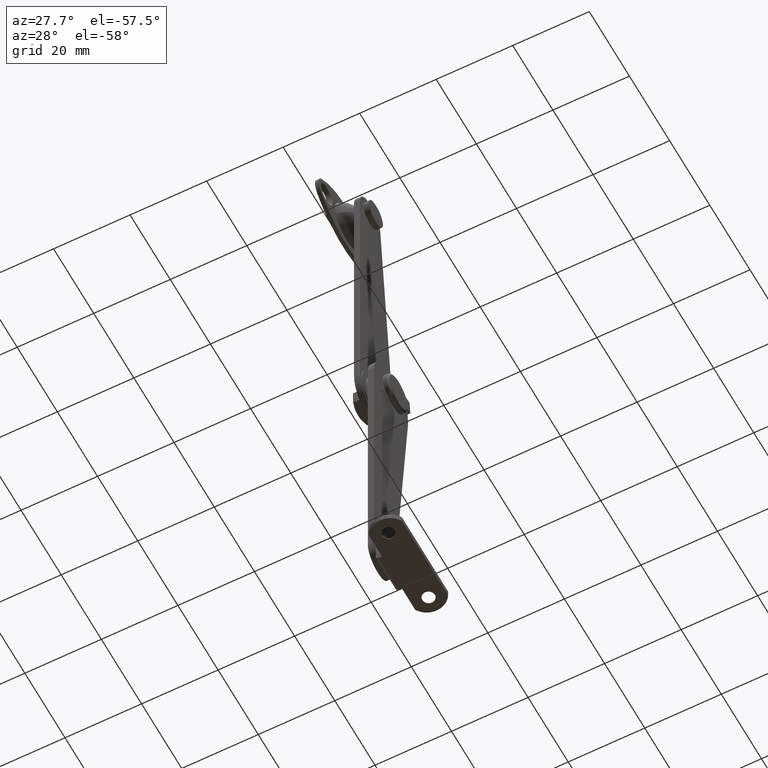
[diagram: clean part render]
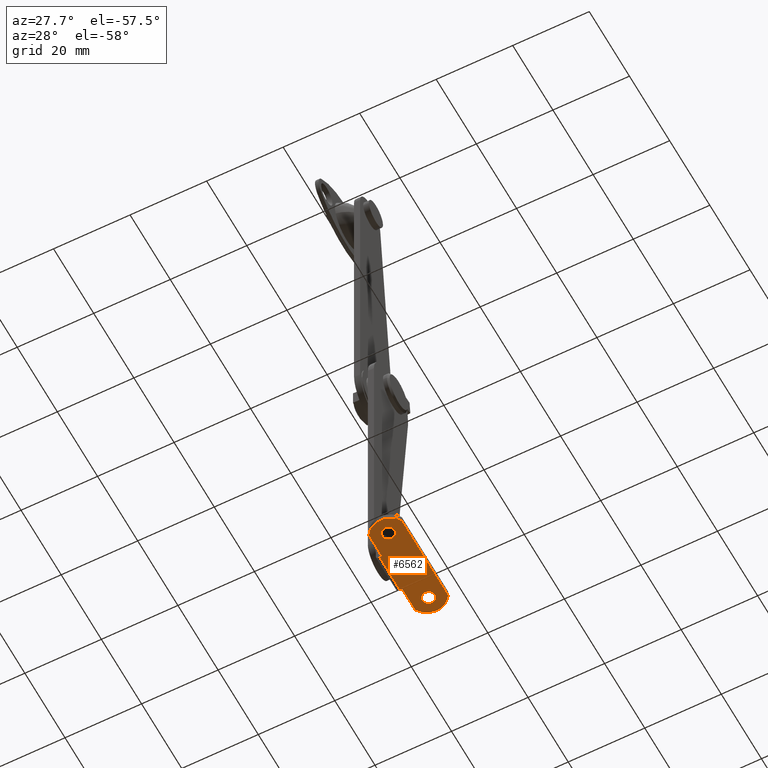
[diagram: same view with one face highlighted and labeled with its STEP entity id]
A machine part, auxiliary view. The second image highlights one B-rep face of the part: STEP entity #6562.
In plain terms, the highlighted face is a freeform B-spline surface patch.
Its self-contained STEP definition (entity closure, byte-faithful):
#5294=CARTESIAN_POINT('',(11.788265327031199,8.139221142729163,-82.599990999999889));
#5295=VERTEX_POINT('',#5294);
#5301=CARTESIAN_POINT('',(13.249999000000081,6.499997000000001,-82.599990999999903));
#5302=VERTEX_POINT('',#5301);
#5303=CARTESIAN_POINT('',(11.788265327031201,8.139221142729163,-82.599990999999889));
#5304=CARTESIAN_POINT('',(13.249999000000079,7.971339543454336,-82.599990999999903));
#5305=CARTESIAN_POINT('',(13.249999000000081,6.499997000000001,-82.599990999999903));
#5313=(BOUNDED_CURVE()B_SPLINE_CURVE(2,(#5303,#5304,#5305),.UNSPECIFIED.,.F.,.U.)B_SPLINE_CURVE_WITH_KNOTS((3,3),(0.269767803410990,0.500000000000000),.UNSPECIFIED.)CURVE()GEOMETRIC_REPRESENTATION_ITEM()RATIONAL_B_SPLINE_CURVE((0.957343642694562,0.730266203466213,1.0))REPRESENTATION_ITEM(''));
#5314=EDGE_CURVE('',#5295,#5302,#5313,.T.);
#5316=CARTESIAN_POINT('',(11.700729090322371,4.853074582609411,-82.599990999999903));
#5317=VERTEX_POINT('',#5316);
#5318=CARTESIAN_POINT('',(13.249999000000081,6.499997000000001,-82.599990999999903));
#5319=CARTESIAN_POINT('',(13.249999000000081,4.947831989775134,-82.599990999999903));
#5320=CARTESIAN_POINT('',(11.700729090322373,4.853074582609411,-82.599990999999903));
#5328=(BOUNDED_CURVE()B_SPLINE_CURVE(2,(#5318,#5319,#5320),.UNSPECIFIED.,.F.,.U.)B_SPLINE_CURVE_WITH_KNOTS((3,3),(0.500000000000000,0.739332962223158),.UNSPECIFIED.)CURVE()GEOMETRIC_REPRESENTATION_ITEM()RATIONAL_B_SPLINE_CURVE((1.0,0.719603993305204,0.976072041632887))REPRESENTATION_ITEM(''));
#5329=EDGE_CURVE('',#5302,#5317,#5328,.T.);
#5428=CARTESIAN_POINT('',(9.949999000000080,6.499997000000001,-82.599990999999903));
#5429=VERTEX_POINT('',#5428);
#5430=CARTESIAN_POINT('',(11.700729090322369,4.853074582609410,-82.599990999999903));
#5431=CARTESIAN_POINT('',(11.650411059532779,4.849997000000000,-82.599990999999903));
#5432=CARTESIAN_POINT('',(11.599999000000080,4.849997000000000,-82.599990999999903));
#5433=CARTESIAN_POINT('',(9.949999000000080,4.849997000000000,-82.599990999999903));
#5434=CARTESIAN_POINT('',(9.949999000000080,6.499997000000001,-82.599990999999903));
#5442=(BOUNDED_CURVE()B_SPLINE_CURVE(2,(#5430,#5431,#5432,#5433,#5434),.UNSPECIFIED.,.F.,.U.)B_SPLINE_CURVE_WITH_KNOTS((3,2,3),(0.739332962223157,0.750000000000000,1.0),.UNSPECIFIED.)CURVE()GEOMETRIC_REPRESENTATION_ITEM()RATIONAL_B_SPLINE_CURVE((0.976072041632885,0.987502787881343,1.0,0.707106781186548,1.0))REPRESENTATION_ITEM(''));
#5443=EDGE_CURVE('',#5317,#5429,#5442,.T.);
#5445=CARTESIAN_POINT('',(9.949999000000080,6.499997000000001,-82.599990999999903));
#5446=CARTESIAN_POINT('',(9.949999000000080,8.149997000000001,-82.599990999999903));
#5447=CARTESIAN_POINT('',(11.599999000000080,8.149997000000001,-82.599990999999903));
#5448=CARTESIAN_POINT('',(11.694440670273831,8.149997000000001,-82.599990999999903));
#5449=CARTESIAN_POINT('',(11.788265327031201,8.139221142729163,-82.599990999999889));
#5457=(BOUNDED_CURVE()B_SPLINE_CURVE(2,(#5445,#5446,#5447,#5448,#5449),.UNSPECIFIED.,.F.,.U.)B_SPLINE_CURVE_WITH_KNOTS((3,2,3),(0.0,0.250000000000000,0.269767803410990),.UNSPECIFIED.)CURVE()GEOMETRIC_REPRESENTATION_ITEM()RATIONAL_B_SPLINE_CURVE((1.0,0.707106781186548,1.0,0.976840577720335,0.957343642694562))REPRESENTATION_ITEM(''));
#5458=EDGE_CURVE('',#5429,#5295,#5457,.T.);
#5626=CARTESIAN_POINT('',(11.788265327031199,-11.860778857270841,-82.599990999999889));
#5627=VERTEX_POINT('',#5626);
#5633=CARTESIAN_POINT('',(13.249999000000081,-13.500003000000000,-82.599990999999903));
#5634=VERTEX_POINT('',#5633);
#5635=CARTESIAN_POINT('',(11.788265327031201,-11.860778857270844,-82.599990999999889));
#5636=CARTESIAN_POINT('',(13.249999000000079,-12.028660456545662,-82.599990999999903));
#5637=CARTESIAN_POINT('',(13.249999000000081,-13.500003000000000,-82.599990999999903));
#5645=(BOUNDED_CURVE()B_SPLINE_CURVE(2,(#5635,#5636,#5637),.UNSPECIFIED.,.F.,.U.)B_SPLINE_CURVE_WITH_KNOTS((3,3),(0.269767803410990,0.500000000000000),.UNSPECIFIED.)CURVE()GEOMETRIC_REPRESENTATION_ITEM()RATIONAL_B_SPLINE_CURVE((0.957343642694562,0.730266203466213,1.0))REPRESENTATION_ITEM(''));
#5646=EDGE_CURVE('',#5627,#5634,#5645,.T.);
#5648=CARTESIAN_POINT('',(11.700729090322371,-15.146925417390589,-82.599990999999903));
#5649=VERTEX_POINT('',#5648);
#5650=CARTESIAN_POINT('',(13.249999000000081,-13.500003000000000,-82.599990999999903));
#5651=CARTESIAN_POINT('',(13.249999000000081,-15.052168010224872,-82.599990999999903));
#5652=CARTESIAN_POINT('',(11.700729090322373,-15.146925417390587,-82.599990999999903));
#5660=(BOUNDED_CURVE()B_SPLINE_CURVE(2,(#5650,#5651,#5652),.UNSPECIFIED.,.F.,.U.)B_SPLINE_CURVE_WITH_KNOTS((3,3),(0.500000000000000,0.739332962223158),.UNSPECIFIED.)CURVE()GEOMETRIC_REPRESENTATION_ITEM()RATIONAL_B_SPLINE_CURVE((1.0,0.719603993305204,0.976072041632887))REPRESENTATION_ITEM(''));
#5661=EDGE_CURVE('',#5634,#5649,#5660,.T.);
#5756=CARTESIAN_POINT('',(9.949999000000080,-13.500003000000000,-82.599990999999903));
#5757=VERTEX_POINT('',#5756);
#5758=CARTESIAN_POINT('',(11.700729090322369,-15.146925417390591,-82.599990999999903));
#5759=CARTESIAN_POINT('',(11.650411059532779,-15.150003000000002,-82.599990999999903));
#5760=CARTESIAN_POINT('',(11.599999000000080,-15.150003000000000,-82.599990999999903));
#5761=CARTESIAN_POINT('',(9.949999000000080,-15.150003000000000,-82.599990999999903));
#5762=CARTESIAN_POINT('',(9.949999000000080,-13.500003000000000,-82.599990999999903));
#5770=(BOUNDED_CURVE()B_SPLINE_CURVE(2,(#5758,#5759,#5760,#5761,#5762),.UNSPECIFIED.,.F.,.U.)B_SPLINE_CURVE_WITH_KNOTS((3,2,3),(0.739332962223157,0.750000000000000,1.0),.UNSPECIFIED.)CURVE()GEOMETRIC_REPRESENTATION_ITEM()RATIONAL_B_SPLINE_CURVE((0.976072041632885,0.987502787881343,1.0,0.707106781186548,1.0))REPRESENTATION_ITEM(''));
#5771=EDGE_CURVE('',#5649,#5757,#5770,.T.);
#5773=CARTESIAN_POINT('',(9.949999000000080,-13.500003000000000,-82.599990999999903));
#5774=CARTESIAN_POINT('',(9.949999000000080,-11.850002999999999,-82.599990999999903));
#5775=CARTESIAN_POINT('',(11.599999000000080,-11.850002999999999,-82.599990999999903));
#5776=CARTESIAN_POINT('',(11.694440670273831,-11.850002999999999,-82.599990999999903));
#5777=CARTESIAN_POINT('',(11.788265327031201,-11.860778857270844,-82.599990999999889));
#5785=(BOUNDED_CURVE()B_SPLINE_CURVE(2,(#5773,#5774,#5775,#5776,#5777),.UNSPECIFIED.,.F.,.U.)B_SPLINE_CURVE_WITH_KNOTS((3,2,3),(0.0,0.250000000000000,0.269767803410990),.UNSPECIFIED.)CURVE()GEOMETRIC_REPRESENTATION_ITEM()RATIONAL_B_SPLINE_CURVE((1.0,0.707106781186548,1.0,0.976840577720335,0.957343642694562))REPRESENTATION_ITEM(''));
#5786=EDGE_CURVE('',#5757,#5627,#5785,.T.);
#6121=CARTESIAN_POINT('',(6.699997000000120,-8.500003000000110,-82.599990999999903));
#6122=VERTEX_POINT('',#6121);
#6145=CARTESIAN_POINT('',(6.699997000000120,1.499996999999894,-82.599990999999903));
#6146=VERTEX_POINT('',#6145);
#6160=CARTESIAN_POINT('',(6.699997000000120,-8.500003000000110,-82.599990999999903));
#6161=CARTESIAN_POINT('',(6.699997000000120,1.499996999999894,-82.599990999999903));
#6162=QUASI_UNIFORM_CURVE('',1,(#6160,#6161),.UNSPECIFIED.,.F.,.U.);
#6163=EDGE_CURVE('',#6122,#6146,#6162,.T.);
#6217=CARTESIAN_POINT('',(7.299995999999999,1.499996999999894,-82.599990999999903));
#6218=VERTEX_POINT('',#6217);
#6219=CARTESIAN_POINT('',(7.299995999999999,1.499996999999894,-82.599990999999903));
#6220=CARTESIAN_POINT('',(6.699997000000120,1.499996999999894,-82.599990999999903));
#6221=QUASI_UNIFORM_CURVE('',1,(#6219,#6220),.UNSPECIFIED.,.F.,.U.);
#6222=EDGE_CURVE('',#6218,#6146,#6221,.T.);
#6255=CARTESIAN_POINT('',(7.299995999999999,-8.500003000000110,-82.599990999999903));
#6256=VERTEX_POINT('',#6255);
#6257=CARTESIAN_POINT('',(7.299995999999999,-8.500003000000110,-82.599990999999903));
#6258=CARTESIAN_POINT('',(6.699997000000120,-8.500003000000110,-82.599990999999903));
#6259=QUASI_UNIFORM_CURVE('',1,(#6257,#6258),.UNSPECIFIED.,.F.,.U.);
#6260=EDGE_CURVE('',#6256,#6122,#6259,.T.);
#6359=CARTESIAN_POINT('',(7.300003000000091,8.051443108519219,-82.599990999999903));
#6360=VERTEX_POINT('',#6359);
#6361=CARTESIAN_POINT('',(15.899994000000000,8.051469000000001,-82.599990999999903));
#6362=VERTEX_POINT('',#6361);
#6363=CARTESIAN_POINT('',(7.300003000000096,8.051443108519214,-82.599990999999903));
#6364=CARTESIAN_POINT('',(8.752869336809912,10.499969481081276,-82.599990999999918));
#6365=CARTESIAN_POINT('',(11.599991039458841,10.499977999977620,-82.599990999999903));
#6366=CARTESIAN_POINT('',(14.447112742107766,10.499986518873961,-82.599990999999918));
#6367=CARTESIAN_POINT('',(15.899994000000000,8.051469000000001,-82.599990999999903));
#6375=(BOUNDED_CURVE()B_SPLINE_CURVE(2,(#6363,#6364,#6365,#6366,#6367),.UNSPECIFIED.,.F.,.U.)B_SPLINE_CURVE_WITH_KNOTS((3,2,3),(0.0,0.500000000000000,1.0),.UNSPECIFIED.)CURVE()GEOMETRIC_REPRESENTATION_ITEM()RATIONAL_B_SPLINE_CURVE((1.0,0.868992403567618,1.0,0.868992403567618,1.0))REPRESENTATION_ITEM(''));
#6376=EDGE_CURVE('',#6360,#6362,#6375,.T.);
#6415=CARTESIAN_POINT('',(15.899994000000000,-15.051504387960900,-82.599990999999903));
#6416=VERTEX_POINT('',#6415);
#6417=CARTESIAN_POINT('',(15.899994000000000,-15.051504387960900,-82.599990999999903));
#6418=CARTESIAN_POINT('',(15.899994000000000,8.051469000000001,-82.599990999999903));
#6419=QUASI_UNIFORM_CURVE('',1,(#6417,#6418),.UNSPECIFIED.,.F.,.U.);
#6420=EDGE_CURVE('',#6416,#6362,#6419,.T.);
#6452=CARTESIAN_POINT('',(7.300003000000091,-15.051479108519199,-82.599990999999903));
#6453=VERTEX_POINT('',#6452);
#6454=CARTESIAN_POINT('',(15.899994000000000,-15.051504387960900,-82.599990999999903));
#6455=CARTESIAN_POINT('',(14.447113179538944,-17.500022369016399,-82.599990999999903));
#6456=CARTESIAN_POINT('',(11.599991302634891,-17.500013999978400,-82.599990999999903));
#6457=CARTESIAN_POINT('',(8.752869425730843,-17.500005630940397,-82.599990999999903));
#6458=CARTESIAN_POINT('',(7.300003000000088,-15.051479108519199,-82.599990999999903));
#6466=(BOUNDED_CURVE()B_SPLINE_CURVE(2,(#6454,#6455,#6456,#6457,#6458),.UNSPECIFIED.,.F.,.U.)B_SPLINE_CURVE_WITH_KNOTS((3,2,3),(0.0,0.500000000000000,1.0),.UNSPECIFIED.)CURVE()GEOMETRIC_REPRESENTATION_ITEM()RATIONAL_B_SPLINE_CURVE((1.0,0.868992390544996,1.0,0.868992390544996,1.0))REPRESENTATION_ITEM(''));
#6467=EDGE_CURVE('',#6416,#6453,#6466,.T.);
#6500=CARTESIAN_POINT('',(7.300003000000091,8.051443108519219,-82.599990999999903));
#6501=CARTESIAN_POINT('',(7.299995999999999,1.499996999999894,-82.599990999999903));
#6502=QUASI_UNIFORM_CURVE('',1,(#6500,#6501),.UNSPECIFIED.,.F.,.U.);
#6503=EDGE_CURVE('',#6360,#6218,#6502,.T.);
#6526=CARTESIAN_POINT('',(7.299995999999999,-8.500003000000110,-82.599990999999903));
#6527=CARTESIAN_POINT('',(7.300003000000091,-15.051479108519199,-82.599990999999903));
#6528=QUASI_UNIFORM_CURVE('',1,(#6526,#6527),.UNSPECIFIED.,.F.,.U.);
#6529=EDGE_CURVE('',#6256,#6453,#6528,.T.);
#6535=CARTESIAN_POINT('',(6.240457081318515,-18.898613020419049,-82.599990999999903));
#6536=CARTESIAN_POINT('',(16.359534083190368,-18.898613020419049,-82.599990999999903));
#6537=CARTESIAN_POINT('',(6.240457081318515,11.898578272115410,-82.599990999999903));
#6538=CARTESIAN_POINT('',(16.359534083190368,11.898578272115410,-82.599990999999903));
#6539=B_SPLINE_SURFACE_WITH_KNOTS('',1,1,((#6535,#6537),(#6536,#6538)),.UNSPECIFIED.,.F.,.F.,.U.,(2,2),(2,2),(0.0,10.119077001871860),(0.0,30.797191292534460),.UNSPECIFIED.);
#6540=ORIENTED_EDGE('',*,*,#6260,.T.);
#6541=ORIENTED_EDGE('',*,*,#6163,.T.);
#6542=ORIENTED_EDGE('',*,*,#6222,.F.);
#6543=ORIENTED_EDGE('',*,*,#6503,.F.);
#6544=ORIENTED_EDGE('',*,*,#6376,.T.);
#6545=ORIENTED_EDGE('',*,*,#6420,.F.);
#6546=ORIENTED_EDGE('',*,*,#6467,.T.);
#6547=ORIENTED_EDGE('',*,*,#6529,.F.);
#6548=EDGE_LOOP('',(#6540,#6541,#6542,#6543,#6544,#6545,#6546,#6547));
#6549=FACE_OUTER_BOUND('',#6548,.T.);
#6550=ORIENTED_EDGE('',*,*,#5661,.F.);
#6551=ORIENTED_EDGE('',*,*,#5646,.F.);
#6552=ORIENTED_EDGE('',*,*,#5786,.F.);
#6553=ORIENTED_EDGE('',*,*,#5771,.F.);
#6554=EDGE_LOOP('',(#6550,#6551,#6552,#6553));
#6555=FACE_BOUND('',#6554,.T.);
#6556=ORIENTED_EDGE('',*,*,#5329,.F.);
#6557=ORIENTED_EDGE('',*,*,#5314,.F.);
#6558=ORIENTED_EDGE('',*,*,#5458,.F.);
#6559=ORIENTED_EDGE('',*,*,#5443,.F.);
#6560=EDGE_LOOP('',(#6556,#6557,#6558,#6559));
#6561=FACE_BOUND('',#6560,.T.);
#6562=ADVANCED_FACE('',(#6549,#6555,#6561),#6539,.F.);